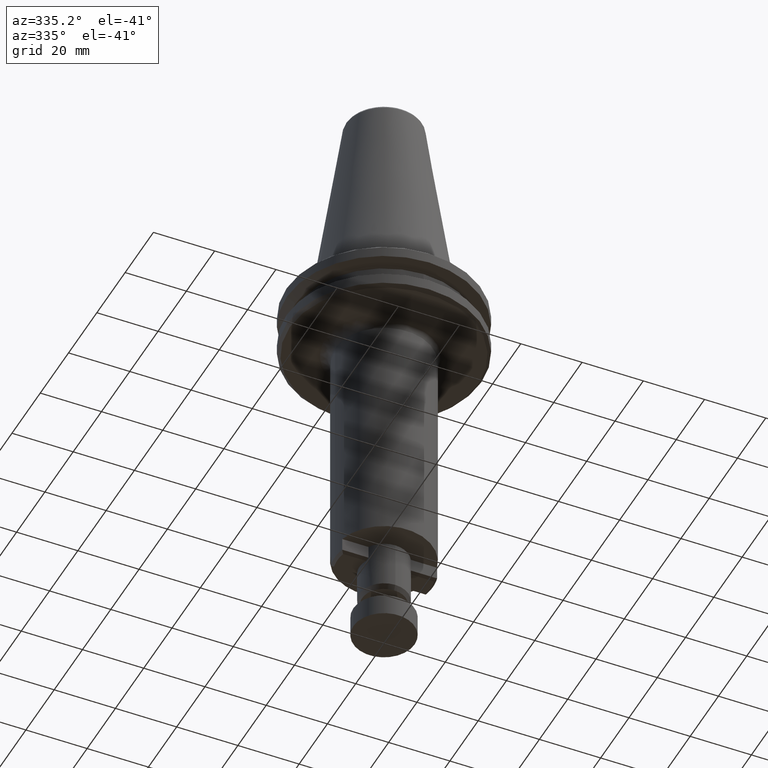
[diagram: clean part render]
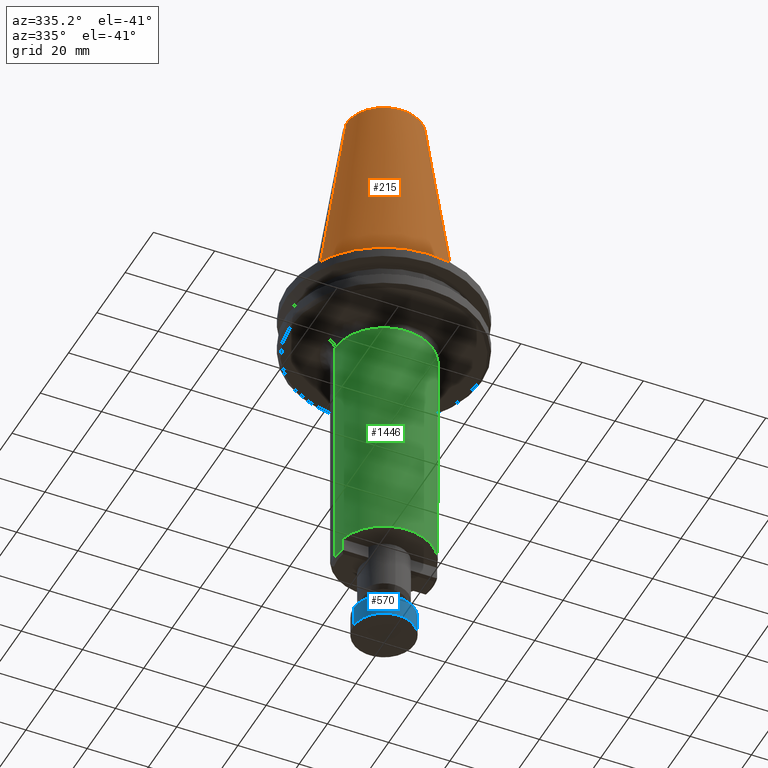
[diagram: same view with three faces highlighted in distinct colors, each labeled with its STEP entity id]
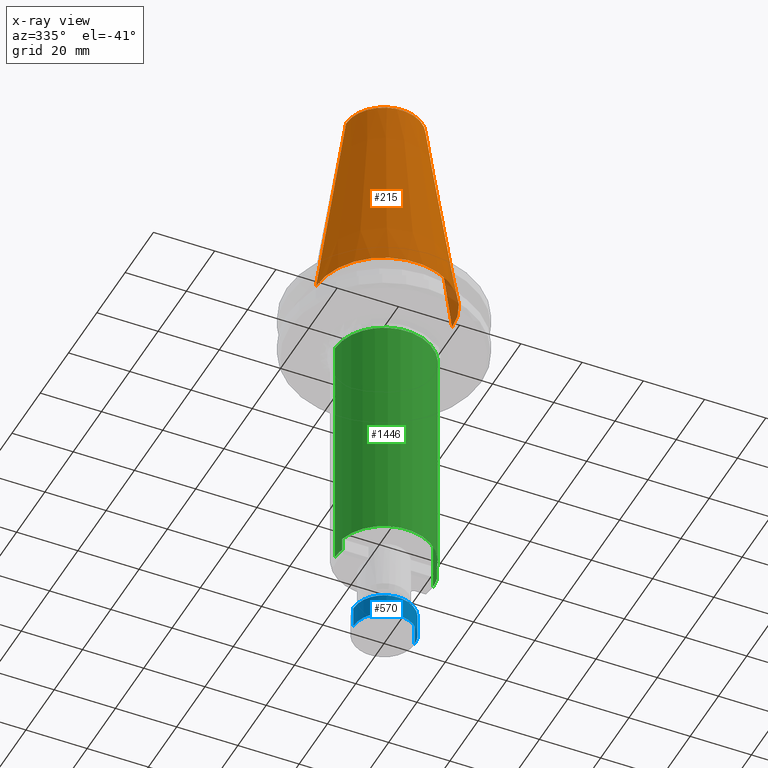
[diagram: x-ray of the same camera — body ghosted, the three highlighted faces saturated]
A machine part, auxiliary view with three faces highlighted in distinct colors.
The next image is the same camera in x-ray (body ghosted, the three faces saturated) — at least one of them is partly hidden behind the body in this view.
Their STEP definitions:

[orange] entity #215 — the highlighted conical surface has half-angle 8.297 deg.
#43 = AXIS2_PLACEMENT_3D ( 'NONE', #1834, #343, #1886 ) ;
#53 = DIRECTION ( 'NONE',  ( -0.1443082272694599400, 0.0000000000000000000, -0.9895327864918603800 ) ) ;
#157 = CIRCLE ( 'NONE', #527, 12.37469537599809200 ) ;
#193 = DIRECTION ( 'NONE',  ( -1.000000000000000000, 0.0000000000000000000, 0.0000000000000000000 ) ) ;
#199 = DIRECTION ( 'NONE',  ( 0.0000000000000000000, 0.0000000000000000000, -1.000000000000000000 ) ) ;
#208 = CARTESIAN_POINT ( 'NONE',  ( 0.0000000000000000000, 0.0000000000000000000, 67.54430822701309000 ) ) ;
#215 = ADVANCED_FACE ( 'NONE', ( #1374 ), #1351, .T. ) ;
#259 = EDGE_CURVE ( 'NONE', #1120, #1653, #898, .T. ) ;
#316 = VERTEX_POINT ( 'NONE', #2127 ) ;
#335 = DIRECTION ( 'NONE',  ( 0.0000000000000000000, 0.0000000000000000000, -1.000000000000000000 ) ) ;
#343 = DIRECTION ( 'NONE',  ( -0.0000000000000000000, -0.0000000000000000000, 1.000000000000000000 ) ) ;
#345 = EDGE_LOOP ( 'NONE', ( #1725, #1244, #1696, #667 ) ) ;
#527 = AXIS2_PLACEMENT_3D ( 'NONE', #208, #199, #193 ) ;
#667 = ORIENTED_EDGE ( 'NONE', *, *, #259, .T. ) ;
#736 = EDGE_CURVE ( 'NONE', #316, #1120, #1159, .T. ) ;
#754 = VERTEX_POINT ( 'NONE', #1493 ) ;
#898 = CIRCLE ( 'NONE', #43, 22.22499999999999400 ) ;
#900 = LINE ( 'NONE', #1789, #2186 ) ;
#1119 = AXIS2_PLACEMENT_3D ( 'NONE', #1422, #335, #1425 ) ;
#1120 = VERTEX_POINT ( 'NONE', #1739 ) ;
#1138 = CARTESIAN_POINT ( 'NONE',  ( 22.22499999999999400, 2.721777511104992100E-015, 0.0000000000000000000 ) ) ;
#1153 = VECTOR ( 'NONE', #53, 1000.000000000000100 ) ;
#1159 = LINE ( 'NONE', #1252, #1153 ) ;
#1244 = ORIENTED_EDGE ( 'NONE', *, *, #2175, .T. ) ;
#1252 = CARTESIAN_POINT ( 'NONE',  ( -22.22499999999999400, 0.0000000000000000000, 0.0000000000000000000 ) ) ;
#1351 = CONICAL_SURFACE ( 'NONE', #1119, 22.22499999999999400, 0.1448138465495947800 ) ;
#1374 = FACE_OUTER_BOUND ( 'NONE', #345, .T. ) ;
#1422 = CARTESIAN_POINT ( 'NONE',  ( 0.0000000000000000000, 0.0000000000000000000, 0.0000000000000000000 ) ) ;
#1425 = DIRECTION ( 'NONE',  ( -1.000000000000000000, 0.0000000000000000000, 0.0000000000000000000 ) ) ;
#1493 = CARTESIAN_POINT ( 'NONE',  ( 12.37469537590452100, -2.855354478374084000E-009, 67.54430822699950500 ) ) ;
#1653 = VERTEX_POINT ( 'NONE', #1138 ) ;
#1696 = ORIENTED_EDGE ( 'NONE', *, *, #736, .T. ) ;
#1725 = ORIENTED_EDGE ( 'NONE', *, *, #1900, .F. ) ;
#1739 = CARTESIAN_POINT ( 'NONE',  ( -22.22499999999999400, 0.0000000000000000000, 0.0000000000000000000 ) ) ;
#1789 = CARTESIAN_POINT ( 'NONE',  ( 22.22499999999999400, 2.721777511104992100E-015, 0.0000000000000000000 ) ) ;
#1800 = DIRECTION ( 'NONE',  ( 0.1443082272694599400, 1.767266086161729200E-017, -0.9895327864918603800 ) ) ;
#1834 = CARTESIAN_POINT ( 'NONE',  ( 0.0000000000000000000, 0.0000000000000000000, 0.0000000000000000000 ) ) ;
#1886 = DIRECTION ( 'NONE',  ( -1.000000000000000000, 0.0000000000000000000, 0.0000000000000000000 ) ) ;
#1900 = EDGE_CURVE ( 'NONE', #754, #1653, #900, .T. ) ;
#2127 = CARTESIAN_POINT ( 'NONE',  ( -12.37469537590595300, -5.555843992514513000E-010, 67.54430822698967100 ) ) ;
#2175 = EDGE_CURVE ( 'NONE', #754, #316, #157, .T. ) ;
#2186 = VECTOR ( 'NONE', #1800, 1000.000000000000100 ) ;

[blue] entity #570 — the highlighted cylindrical surface (edge-blend (fillet) strip) has radius 10 mm, axis along (0, 0, 1).
#44 = ORIENTED_EDGE ( 'NONE', *, *, #1379, .T. ) ;
#75 = VERTEX_POINT ( 'NONE', #558 ) ;
#254 = VERTEX_POINT ( 'NONE', #1416 ) ;
#269 = ORIENTED_EDGE ( 'NONE', *, *, #1539, .F. ) ;
#323 = AXIS2_PLACEMENT_3D ( 'NONE', #1839, #2173, #1072 ) ;
#459 = ORIENTED_EDGE ( 'NONE', *, *, #1305, .T. ) ;
#484 = DIRECTION ( 'NONE',  ( 0.0000000000000000000, 0.0000000000000000000, 1.000000000000000000 ) ) ;
#490 = CARTESIAN_POINT ( 'NONE',  ( -10.00000000000000000, 1.224646799147353300E-015, -129.0000000000000000 ) ) ;
#558 = CARTESIAN_POINT ( 'NONE',  ( 10.00000000000000000, 0.0000000000000000000, -129.0000000000000000 ) ) ;
#570 = ADVANCED_FACE ( 'NONE', ( #1434 ), #641, .T. ) ;
#601 = CARTESIAN_POINT ( 'NONE',  ( -10.00000000000000000, 1.224646799147353300E-015, -129.0000000000000000 ) ) ;
#641 = CYLINDRICAL_SURFACE ( 'NONE', #1020, 10.00000000000000000 ) ;
#704 = DIRECTION ( 'NONE',  ( 1.000000000000000000, 0.0000000000000000000, 0.0000000000000000000 ) ) ;
#782 = VECTOR ( 'NONE', #1220, 1000.000000000000000 ) ;
#927 = CARTESIAN_POINT ( 'NONE',  ( 10.00000000000000000, 0.0000000000000000000, -129.0000000000000000 ) ) ;
#930 = VERTEX_POINT ( 'NONE', #601 ) ;
#1020 = AXIS2_PLACEMENT_3D ( 'NONE', #1148, #484, #1260 ) ;
#1072 = DIRECTION ( 'NONE',  ( 1.000000000000000000, 0.0000000000000000000, 0.0000000000000000000 ) ) ;
#1148 = CARTESIAN_POINT ( 'NONE',  ( 0.0000000000000000000, 0.0000000000000000000, -129.0000000000000000 ) ) ;
#1182 = VERTEX_POINT ( 'NONE', #1759 ) ;
#1183 = AXIS2_PLACEMENT_3D ( 'NONE', #1269, #1282, #704 ) ;
#1220 = DIRECTION ( 'NONE',  ( 0.0000000000000000000, 0.0000000000000000000, 1.000000000000000000 ) ) ;
#1260 = DIRECTION ( 'NONE',  ( 1.000000000000000000, 0.0000000000000000000, 0.0000000000000000000 ) ) ;
#1269 = CARTESIAN_POINT ( 'NONE',  ( 0.0000000000000000000, 0.0000000000000000000, -129.0000000000000000 ) ) ;
#1282 = DIRECTION ( 'NONE',  ( 0.0000000000000000000, 0.0000000000000000000, 1.000000000000000000 ) ) ;
#1305 = EDGE_CURVE ( 'NONE', #1182, #254, #1544, .T. ) ;
#1343 = DIRECTION ( 'NONE',  ( 0.0000000000000000000, 0.0000000000000000000, 1.000000000000000000 ) ) ;
#1379 = EDGE_CURVE ( 'NONE', #75, #1182, #1404, .T. ) ;
#1404 = LINE ( 'NONE', #927, #782 ) ;
#1416 = CARTESIAN_POINT ( 'NONE',  ( -10.00000000000000000, 1.224646799147353300E-015, -122.0000000000000000 ) ) ;
#1434 = FACE_OUTER_BOUND ( 'NONE', #1808, .T. ) ;
#1539 = EDGE_CURVE ( 'NONE', #930, #254, #2220, .T. ) ;
#1544 = CIRCLE ( 'NONE', #323, 10.00000000000000000 ) ;
#1600 = EDGE_CURVE ( 'NONE', #930, #75, #2160, .T. ) ;
#1759 = CARTESIAN_POINT ( 'NONE',  ( 10.00000000000000000, 0.0000000000000000000, -122.0000000000000000 ) ) ;
#1808 = EDGE_LOOP ( 'NONE', ( #269, #2275, #44, #459 ) ) ;
#1830 = VECTOR ( 'NONE', #1343, 1000.000000000000000 ) ;
#1839 = CARTESIAN_POINT ( 'NONE',  ( 0.0000000000000000000, 0.0000000000000000000, -122.0000000000000000 ) ) ;
#2160 = CIRCLE ( 'NONE', #1183, 10.00000000000000000 ) ;
#2173 = DIRECTION ( 'NONE',  ( -0.0000000000000000000, -0.0000000000000000000, -1.000000000000000000 ) ) ;
#2220 = LINE ( 'NONE', #490, #1830 ) ;
#2275 = ORIENTED_EDGE ( 'NONE', *, *, #1600, .T. ) ;

[green] entity #1446 — the highlighted cylindrical surface (partial cylindrical patch) has radius 16 mm, axis along (0, -0, 1).
#51 = DIRECTION ( 'NONE',  ( 2.710505431213761100E-017, 0.0000000000000000000, 1.000000000000000000 ) ) ;
#57 = CARTESIAN_POINT ( 'NONE',  ( -8.228460455756012600E-032, 0.0000000000000000000, -104.1999999999999900 ) ) ;
#60 = CARTESIAN_POINT ( 'NONE',  ( 0.0000000000000000000, 0.0000000000000000000, -89.00000000000000000 ) ) ;
#71 = DIRECTION ( 'NONE',  ( 1.000000000000000000, 0.0000000000000000000, 0.0000000000000000000 ) ) ;
#84 = AXIS2_PLACEMENT_3D ( 'NONE', #392, #317, #1189 ) ;
#87 = AXIS2_PLACEMENT_3D ( 'NONE', #2145, #597, #1863 ) ;
#117 = AXIS2_PLACEMENT_3D ( 'NONE', #60, #1140, #148 ) ;
#146 = CIRCLE ( 'NONE', #87, 16.00000000000000000 ) ;
#148 = DIRECTION ( 'NONE',  ( 1.000000000000000000, 0.0000000000000000000, 0.0000000000000000000 ) ) ;
#180 = LINE ( 'NONE', #471, #701 ) ;
#230 = CARTESIAN_POINT ( 'NONE',  ( -1.236306237400216700E-026, 0.0000000000000000000, -104.2000000004561100 ) ) ;
#266 = CIRCLE ( 'NONE', #84, 15.99999999987771900 ) ;
#293 = EDGE_CURVE ( 'NONE', #755, #1866, #1060, .T. ) ;
#317 = DIRECTION ( 'NONE',  ( 0.0000000000000000000, 1.084202172493490300E-016, -1.000000000000000000 ) ) ;
#348 = CARTESIAN_POINT ( 'NONE',  ( 16.00000000000000000, 0.0000000000000000000, -104.2000000004561100 ) ) ;
#392 = CARTESIAN_POINT ( 'NONE',  ( 0.0000000000000000000, 0.0000000000000000000, -22.10000000000000900 ) ) ;
#471 = CARTESIAN_POINT ( 'NONE',  ( -16.00000000000000000, 1.959434878635765100E-015, -89.00000000000000000 ) ) ;
#473 = DIRECTION ( 'NONE',  ( 0.0000000000000000000, -0.0000000000000000000, 1.000000000000000000 ) ) ;
#488 = VERTEX_POINT ( 'NONE', #1987 ) ;
#489 = CARTESIAN_POINT ( 'NONE',  ( -15.49193338476664300, -4.000000000244092700, -99.99999999919998600 ) ) ;
#500 = CARTESIAN_POINT ( 'NONE',  ( -15.49193338476664300, -4.000000000122046400, -104.2000000006810300 ) ) ;
#529 = VERTEX_POINT ( 'NONE', #348 ) ;
#533 = EDGE_CURVE ( 'NONE', #765, #2144, #266, .T. ) ;
#576 = CARTESIAN_POINT ( 'NONE',  ( -15.99999999990828800, -1.230620203816620500E-009, -22.09999999974090900 ) ) ;
#597 = DIRECTION ( 'NONE',  ( -0.0000000000000000000, -0.0000000000000000000, 1.000000000000000000 ) ) ;
#687 = EDGE_CURVE ( 'NONE', #529, #765, #1097, .T. ) ;
#692 = LINE ( 'NONE', #1659, #2192 ) ;
#701 = VECTOR ( 'NONE', #473, 1000.000000000000000 ) ;
#726 = VERTEX_POINT ( 'NONE', #1418 ) ;
#747 = EDGE_CURVE ( 'NONE', #2014, #488, #692, .T. ) ;
#755 = VERTEX_POINT ( 'NONE', #500 ) ;
#765 = VERTEX_POINT ( 'NONE', #2111 ) ;
#822 = DIRECTION ( 'NONE',  ( 2.710505431213761100E-017, 0.0000000000000000000, 1.000000000000000000 ) ) ;
#829 = EDGE_CURVE ( 'NONE', #488, #529, #1406, .T. ) ;
#864 = VECTOR ( 'NONE', #822, 1000.000000000000000 ) ;
#1004 = AXIS2_PLACEMENT_3D ( 'NONE', #230, #1482, #2088 ) ;
#1031 = CARTESIAN_POINT ( 'NONE',  ( 16.00000000000000000, 0.0000000000000000000, -89.00000000000000000 ) ) ;
#1060 = LINE ( 'NONE', #2059, #864 ) ;
#1071 = VECTOR ( 'NONE', #1229, 1000.000000000000000 ) ;
#1097 = LINE ( 'NONE', #1031, #1071 ) ;
#1122 = CYLINDRICAL_SURFACE ( 'NONE', #117, 16.00000000000000000 ) ;
#1140 = DIRECTION ( 'NONE',  ( 0.0000000000000000000, -0.0000000000000000000, 1.000000000000000000 ) ) ;
#1164 = EDGE_CURVE ( 'NONE', #1866, #2014, #146, .T. ) ;
#1189 = DIRECTION ( 'NONE',  ( 0.0000000000000000000, 1.000000000000000000, 0.0000000000000000000 ) ) ;
#1229 = DIRECTION ( 'NONE',  ( 0.0000000000000000000, -0.0000000000000000000, 1.000000000000000000 ) ) ;
#1406 = CIRCLE ( 'NONE', #1004, 16.00000000000000000 ) ;
#1418 = CARTESIAN_POINT ( 'NONE',  ( -16.00000000000000000, 1.959434878635765100E-015, -104.1999999999999900 ) ) ;
#1426 = EDGE_CURVE ( 'NONE', #726, #755, #2112, .T. ) ;
#1430 = ORIENTED_EDGE ( 'NONE', *, *, #829, .T. ) ;
#1446 = ADVANCED_FACE ( 'NONE', ( #2011 ), #1122, .T. ) ;
#1482 = DIRECTION ( 'NONE',  ( 2.710505431213761100E-017, 0.0000000000000000000, 1.000000000000000000 ) ) ;
#1483 = EDGE_CURVE ( 'NONE', #726, #2144, #180, .T. ) ;
#1588 = ORIENTED_EDGE ( 'NONE', *, *, #1483, .F. ) ;
#1659 = CARTESIAN_POINT ( 'NONE',  ( 15.49193338483498800, -3.999999999979394300, -104.1999999999999900 ) ) ;
#1683 = AXIS2_PLACEMENT_3D ( 'NONE', #57, #51, #71 ) ;
#1714 = CARTESIAN_POINT ( 'NONE',  ( 15.49193338483232900, -3.999999999994849000, -100.0000000008499900 ) ) ;
#1793 = ORIENTED_EDGE ( 'NONE', *, *, #1164, .T. ) ;
#1857 = EDGE_LOOP ( 'NONE', ( #1588, #2150, #2263, #1793, #1894, #1430, #1945, #2122 ) ) ;
#1863 = DIRECTION ( 'NONE',  ( 1.000000000000000000, 0.0000000000000000000, 0.0000000000000000000 ) ) ;
#1866 = VERTEX_POINT ( 'NONE', #489 ) ;
#1894 = ORIENTED_EDGE ( 'NONE', *, *, #747, .T. ) ;
#1945 = ORIENTED_EDGE ( 'NONE', *, *, #687, .T. ) ;
#1987 = CARTESIAN_POINT ( 'NONE',  ( 15.49193338469094900, -3.999999999926446800, -104.2000000003820500 ) ) ;
#2011 = FACE_OUTER_BOUND ( 'NONE', #1857, .T. ) ;
#2014 = VERTEX_POINT ( 'NONE', #1714 ) ;
#2059 = CARTESIAN_POINT ( 'NONE',  ( -15.49193338470362000, -4.000000000488185500, -104.1999999999999900 ) ) ;
#2088 = DIRECTION ( 'NONE',  ( 1.000000000000000000, 0.0000000000000000000, 0.0000000000000000000 ) ) ;
#2111 = CARTESIAN_POINT ( 'NONE',  ( 15.99999999993886100, 0.0000000000000000000, -22.09999999982727900 ) ) ;
#2112 = CIRCLE ( 'NONE', #1683, 16.00000000000000000 ) ;
#2122 = ORIENTED_EDGE ( 'NONE', *, *, #533, .T. ) ;
#2144 = VERTEX_POINT ( 'NONE', #576 ) ;
#2145 = CARTESIAN_POINT ( 'NONE',  ( 0.0000000000000000000, 0.0000000000000000000, -99.99999999919998600 ) ) ;
#2146 = DIRECTION ( 'NONE',  ( -2.710505431213761100E-017, -0.0000000000000000000, -1.000000000000000000 ) ) ;
#2150 = ORIENTED_EDGE ( 'NONE', *, *, #1426, .T. ) ;
#2192 = VECTOR ( 'NONE', #2146, 1000.000000000000000 ) ;
#2263 = ORIENTED_EDGE ( 'NONE', *, *, #293, .T. ) ;